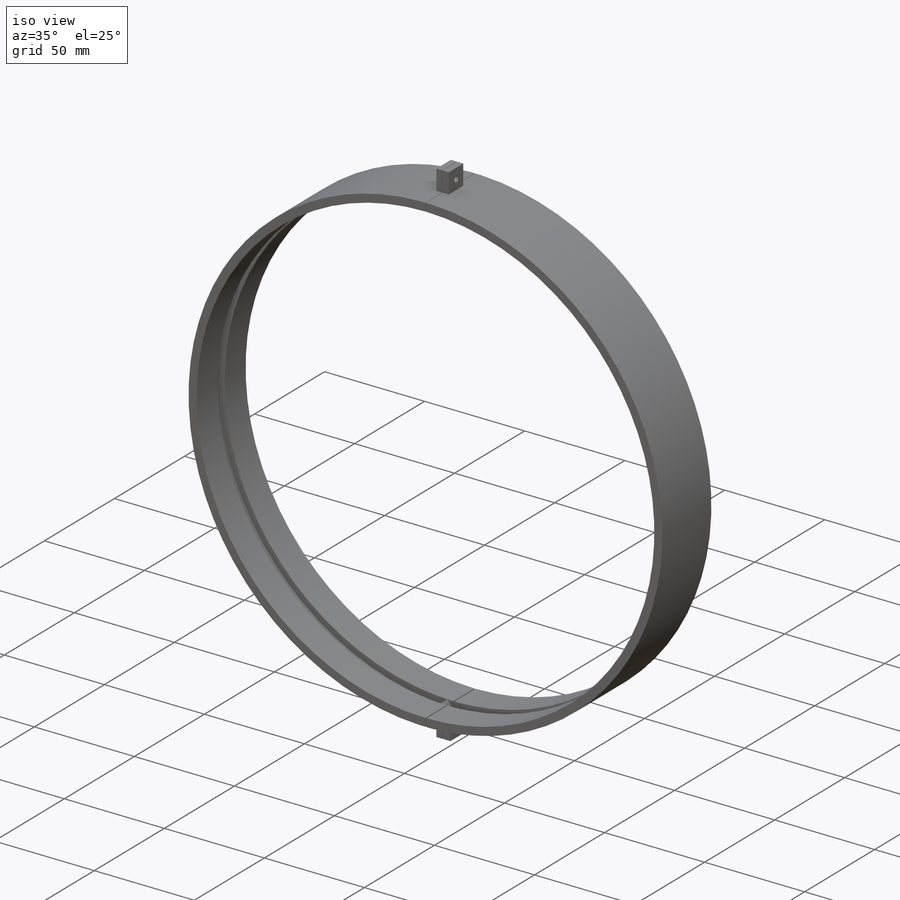
[diagram: iso view]
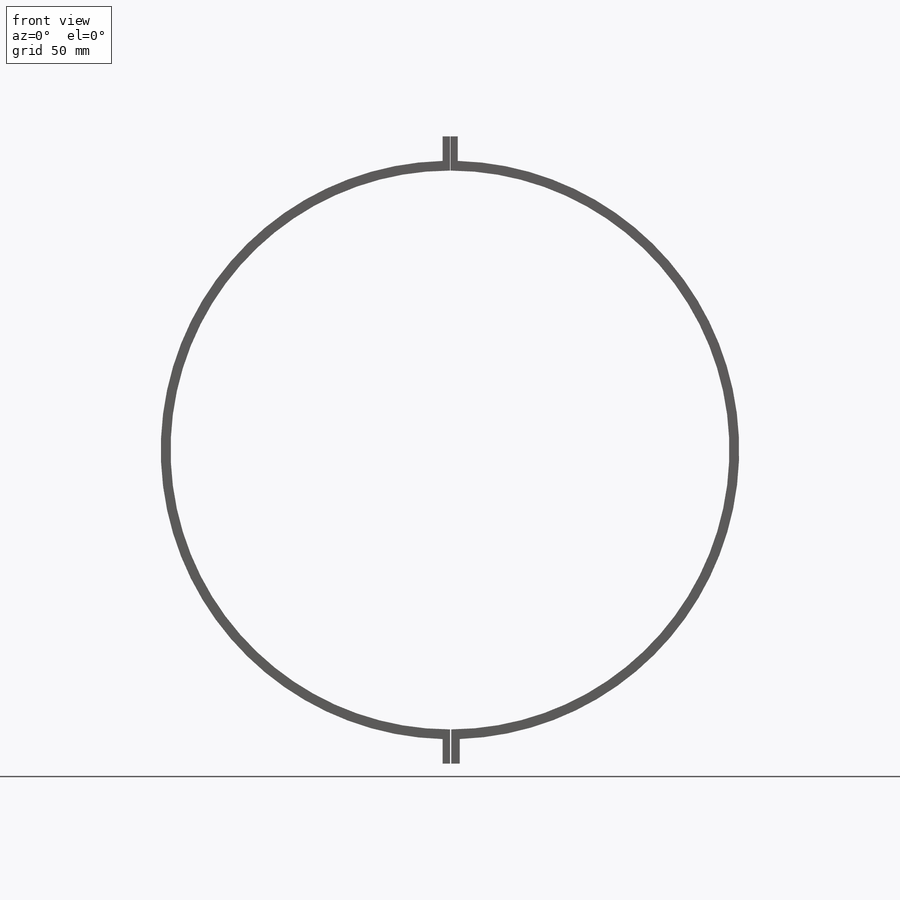
[diagram: front view]
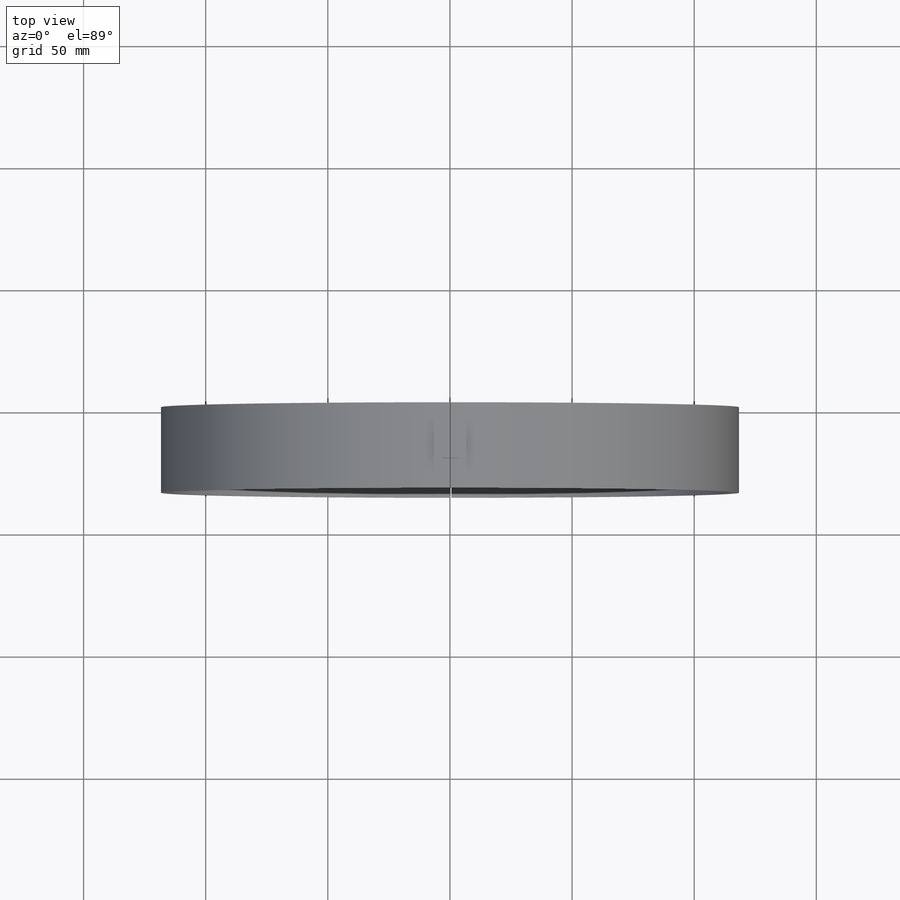
[diagram: top view]
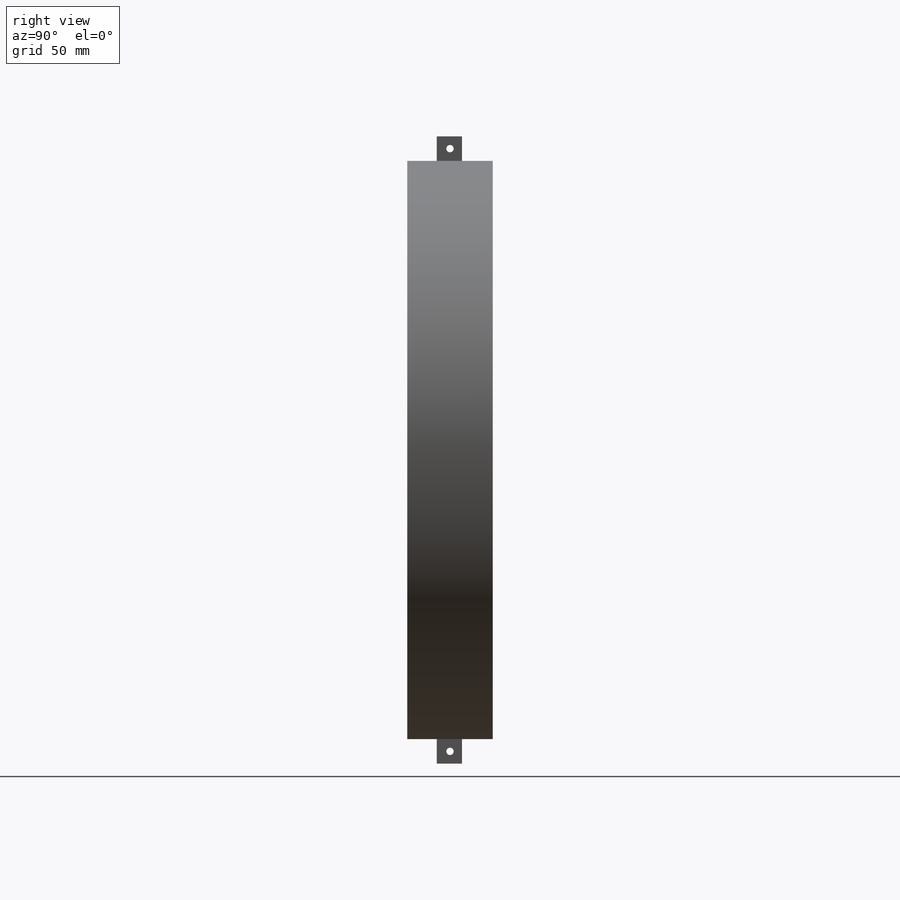
[diagram: right view]
SOLIDWORKS PART (.sldprt)
format: sldprt  version: not decoded by parser v0  size: 297,984 bytes
history: native  units: mm
features: sketch x6, extrude x4, cut_extrude x2, material x1 (+16 scaffold rows collapsed)
feature tree (29):
  scaffold x16  (default folders/planes/origin — collapsed)
  material  "6063-T4"
  sketch  "Sketch1"  dims[D1=236.8mm]
  extrude  "Extrude1"  Depth=15mm
  sketch  "Sketch2"  dims[D1=236.8mm]
  extrude  "Extrude2"  Depth=5mm
  sketch  "Sketch3"  dims[D1=236.8mm]
  extrude  "Extrude3"  Depth=15mm
  sketch  "Sketch4"  dims[D6=236.8mm D1=10.0mm D2=3.0mm D3=0.2mm D4=3.0mm D5=10.0mm]
  extrude  "Extrude4"  Depth=35mm
  sketch  "Sketch5"
  cut_extrude  "Extrude5"  [1 undecoded]
  sketch  "Sketch6"  dims[D1=~2.000221mm]
  cut_extrude  "Extrude6"  [1 undecoded]
decode coverage: 9 of 12 modeling features carry decoded parameters
note: ~ marks probable driven/reference dimensions
note: 2 parameter values undecoded
note: suppression state not decoded; provenance and decode notes live in map.json
